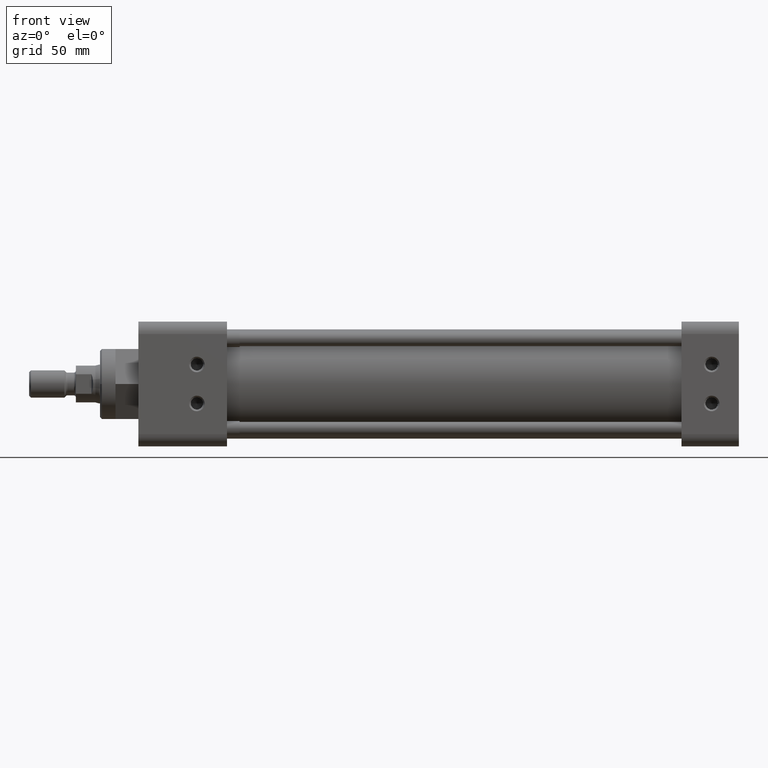
[diagram: clean part render]
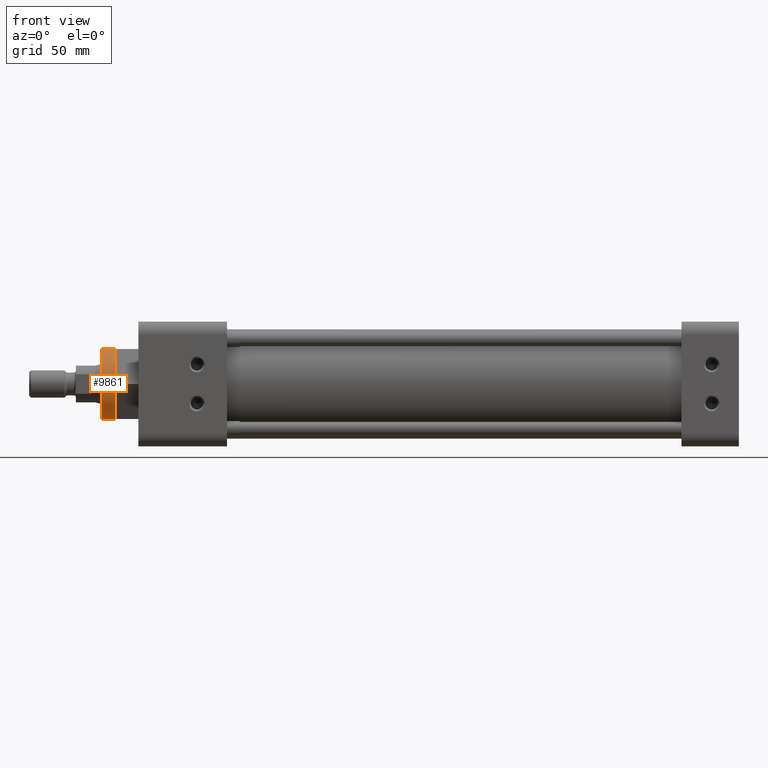
[diagram: same view with one face highlighted and labeled with its STEP entity id]
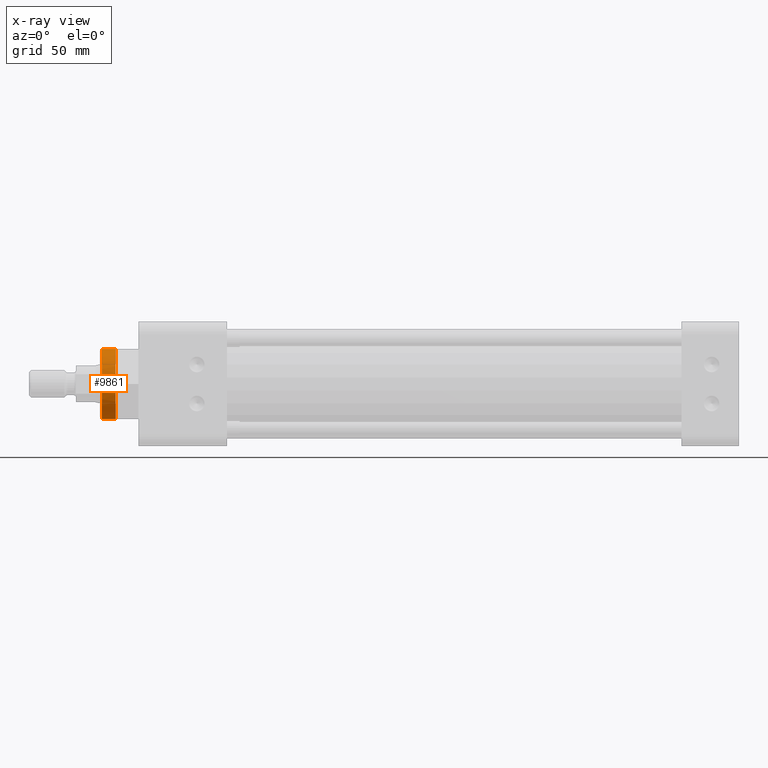
[diagram: x-ray of the same camera — body ghosted, the highlighted face saturated]
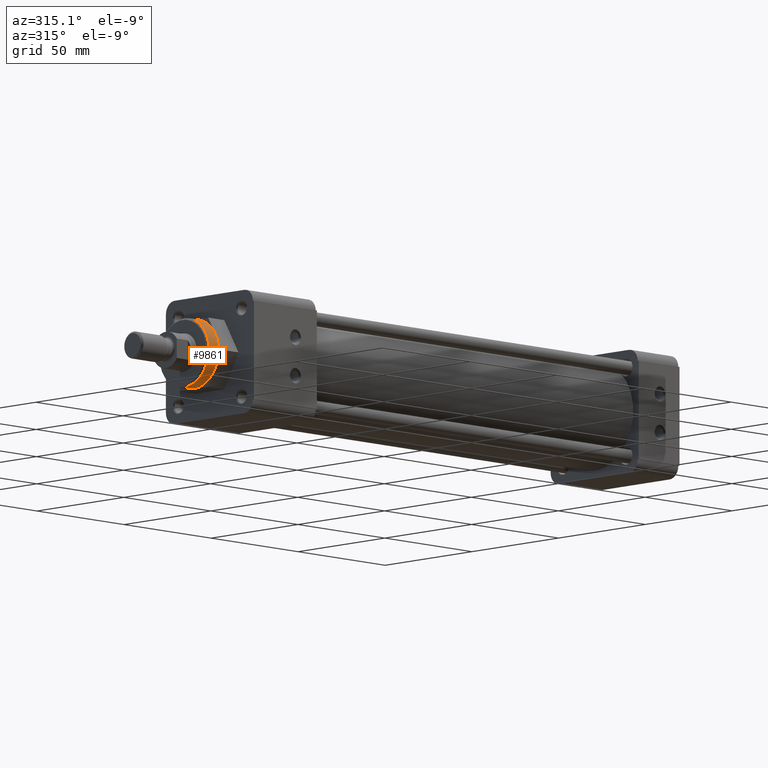
[diagram: same view with one face highlighted and labeled with its STEP entity id]
A machine part, front view. The second image highlights one B-rep face of the part: STEP entity #9861.
The next image is the same camera in x-ray: the body ghosted, the highlighted face saturated — about 0% of this face is hidden behind the body in this view.
A second angle (auxiliary view) of the same face is appended — the face is thin or edge-on in the first view.
In plain terms, the highlighted cylindrical surface (edge-blend (fillet) strip) has radius 14.2367 mm, axis along (-1, 0, 0).
Its self-contained STEP definition (entity closure, byte-faithful):
#86 = CIRCLE ( 'NONE', #4147, 0.5605000000000000000 ) ;
#796 = CIRCLE ( 'NONE', #7101, 0.5605000000000000000 ) ;
#821 = CARTESIAN_POINT ( 'NONE',  ( -0.3649999999999999900, 0.0000000000000000000, 0.0000000000000000000 ) ) ;
#827 = EDGE_CURVE ( 'NONE', #2816, #3736, #86, .T. ) ;
#1151 = CARTESIAN_POINT ( 'NONE',  ( -0.3649999999999999900, 0.0000000000000000000, 0.0000000000000000000 ) ) ;
#1277 = FACE_OUTER_BOUND ( 'NONE', #7172, .T. ) ;
#1474 = AXIS2_PLACEMENT_3D ( 'NONE', #6660, #13532, #12437 ) ;
#1512 = ORIENTED_EDGE ( 'NONE', *, *, #9029, .T. ) ;
#1787 = DIRECTION ( 'NONE',  ( -1.000000000000000000, -0.0000000000000000000, 0.0000000000000000000 ) ) ;
#1886 = CARTESIAN_POINT ( 'NONE',  ( -0.3649999999999999900, 3.432072654610457500E-017, -0.5605000000000000000 ) ) ;
#1970 = DIRECTION ( 'NONE',  ( 0.0000000000000000000, 0.0000000000000000000, 1.000000000000000000 ) ) ;
#2284 = DIRECTION ( 'NONE',  ( 0.0000000000000000000, 0.0000000000000000000, 1.000000000000000000 ) ) ;
#2614 = ORIENTED_EDGE ( 'NONE', *, *, #4605, .T. ) ;
#2631 = DIRECTION ( 'NONE',  ( -1.000000000000000000, -0.0000000000000000000, 0.0000000000000000000 ) ) ;
#2816 = VERTEX_POINT ( 'NONE', #14021 ) ;
#2957 = CARTESIAN_POINT ( 'NONE',  ( -0.3649999999999999900, -0.4854072388211780900, -0.2802499999999998300 ) ) ;
#3007 = VERTEX_POINT ( 'NONE', #2957 ) ;
#3171 = VERTEX_POINT ( 'NONE', #13529 ) ;
#3736 = VERTEX_POINT ( 'NONE', #11398 ) ;
#4045 = EDGE_CURVE ( 'NONE', #9073, #9347, #14560, .T. ) ;
#4147 = AXIS2_PLACEMENT_3D ( 'NONE', #12960, #6093, #14104 ) ;
#4179 = CIRCLE ( 'NONE', #10579, 0.5605000000000000000 ) ;
#4406 = CARTESIAN_POINT ( 'NONE',  ( 0.0000000000000000000, 6.864145309220914900E-017, -0.5605000000000000000 ) ) ;
#4537 = CARTESIAN_POINT ( 'NONE',  ( -0.5850000000000000800, 6.864145309220917400E-017, -0.5605000000000001100 ) ) ;
#4605 = EDGE_CURVE ( 'NONE', #11282, #3171, #6363, .T. ) ;
#5435 = VECTOR ( 'NONE', #10120, 39.37007874015748100 ) ;
#5781 = DIRECTION ( 'NONE',  ( -1.000000000000000000, 0.0000000000000000000, 0.0000000000000000000 ) ) ;
#6093 = DIRECTION ( 'NONE',  ( -1.000000000000000000, 0.0000000000000000000, 0.0000000000000000000 ) ) ;
#6363 = CIRCLE ( 'NONE', #7169, 0.5605000000000000000 ) ;
#6660 = CARTESIAN_POINT ( 'NONE',  ( 0.0000000000000000000, 0.0000000000000000000, 0.0000000000000000000 ) ) ;
#6829 = ORIENTED_EDGE ( 'NONE', *, *, #9407, .F. ) ;
#7083 = LINE ( 'NONE', #8633, #9775 ) ;
#7101 = AXIS2_PLACEMENT_3D ( 'NONE', #821, #8824, #1970 ) ;
#7169 = AXIS2_PLACEMENT_3D ( 'NONE', #9488, #2631, #10642 ) ;
#7172 = EDGE_LOOP ( 'NONE', ( #7832, #12901, #10838, #2614, #1512, #13460, #6829 ) ) ;
#7832 = ORIENTED_EDGE ( 'NONE', *, *, #4045, .F. ) ;
#8633 = CARTESIAN_POINT ( 'NONE',  ( 0.0000000000000000000, 0.0000000000000000000, 0.5605000000000000000 ) ) ;
#8824 = DIRECTION ( 'NONE',  ( -1.000000000000000000, -0.0000000000000000000, 0.0000000000000000000 ) ) ;
#9029 = EDGE_CURVE ( 'NONE', #3171, #3736, #7083, .T. ) ;
#9073 = VERTEX_POINT ( 'NONE', #1886 ) ;
#9131 = EDGE_CURVE ( 'NONE', #3007, #11282, #796, .T. ) ;
#9140 = DIRECTION ( 'NONE',  ( -1.000000000000000000, -0.0000000000000000000, 0.0000000000000000000 ) ) ;
#9347 = VERTEX_POINT ( 'NONE', #4537 ) ;
#9407 = EDGE_CURVE ( 'NONE', #9347, #2816, #14029, .T. ) ;
#9488 = CARTESIAN_POINT ( 'NONE',  ( -0.3649999999999999900, 0.0000000000000000000, 0.0000000000000000000 ) ) ;
#9611 = AXIS2_PLACEMENT_3D ( 'NONE', #12643, #5781, #13788 ) ;
#9775 = VECTOR ( 'NONE', #1787, 39.37007874015748100 ) ;
#9861 = ADVANCED_FACE ( 'NONE', ( #1277 ), #14678, .T. ) ;
#10120 = DIRECTION ( 'NONE',  ( -1.000000000000000000, -0.0000000000000000000, 0.0000000000000000000 ) ) ;
#10481 = EDGE_CURVE ( 'NONE', #9073, #3007, #4179, .T. ) ;
#10579 = AXIS2_PLACEMENT_3D ( 'NONE', #1151, #9140, #2284 ) ;
#10642 = DIRECTION ( 'NONE',  ( 0.0000000000000000000, 0.0000000000000000000, 1.000000000000000000 ) ) ;
#10838 = ORIENTED_EDGE ( 'NONE', *, *, #9131, .T. ) ;
#11282 = VERTEX_POINT ( 'NONE', #14139 ) ;
#11398 = CARTESIAN_POINT ( 'NONE',  ( -0.5850000000000000800, 0.0000000000000000000, 0.5605000000000001100 ) ) ;
#12437 = DIRECTION ( 'NONE',  ( 0.0000000000000000000, 0.0000000000000000000, 1.000000000000000000 ) ) ;
#12643 = CARTESIAN_POINT ( 'NONE',  ( -0.5850000000000000800, 0.0000000000000000000, 0.0000000000000000000 ) ) ;
#12901 = ORIENTED_EDGE ( 'NONE', *, *, #10481, .T. ) ;
#12960 = CARTESIAN_POINT ( 'NONE',  ( -0.5850000000000000800, 0.0000000000000000000, 0.0000000000000000000 ) ) ;
#13460 = ORIENTED_EDGE ( 'NONE', *, *, #827, .F. ) ;
#13529 = CARTESIAN_POINT ( 'NONE',  ( -0.3649999999999999900, -6.864145309220914900E-017, 0.5605000000000000000 ) ) ;
#13532 = DIRECTION ( 'NONE',  ( -1.000000000000000000, -0.0000000000000000000, 0.0000000000000000000 ) ) ;
#13788 = DIRECTION ( 'NONE',  ( 0.0000000000000000000, 0.0000000000000000000, -1.000000000000000000 ) ) ;
#14021 = CARTESIAN_POINT ( 'NONE',  ( -0.5850000000000000800, -0.5605000000000001100, 6.864145309220914900E-017 ) ) ;
#14029 = CIRCLE ( 'NONE', #9611, 0.5605000000000000000 ) ;
#14104 = DIRECTION ( 'NONE',  ( 0.0000000000000000000, 0.0000000000000000000, -1.000000000000000000 ) ) ;
#14139 = CARTESIAN_POINT ( 'NONE',  ( -0.3649999999999999900, -0.4854072388211780900, 0.2802499999999998300 ) ) ;
#14560 = LINE ( 'NONE', #4406, #5435 ) ;
#14678 = CYLINDRICAL_SURFACE ( 'NONE', #1474, 0.5605000000000000000 ) ;